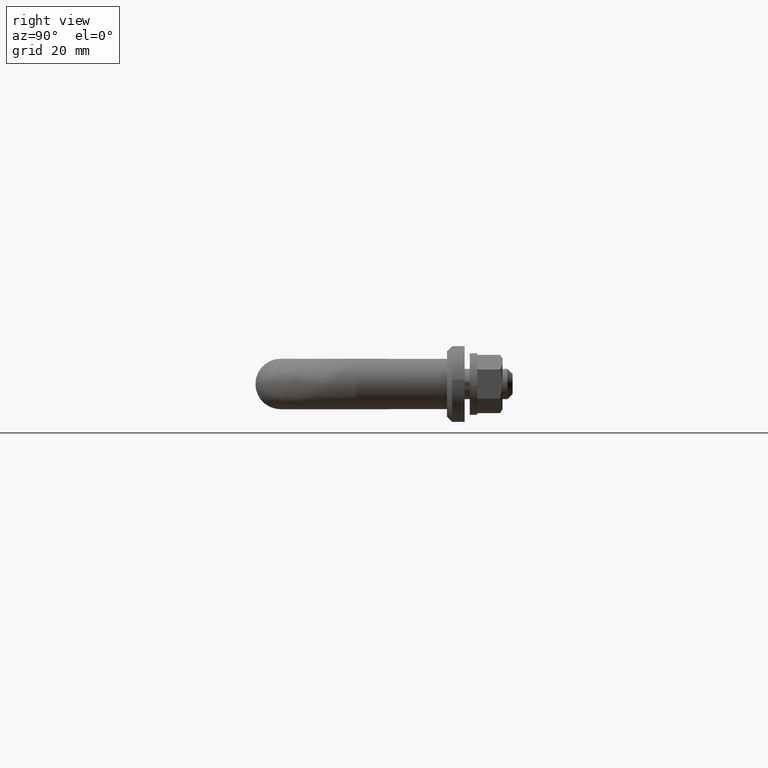
[diagram: clean part render]
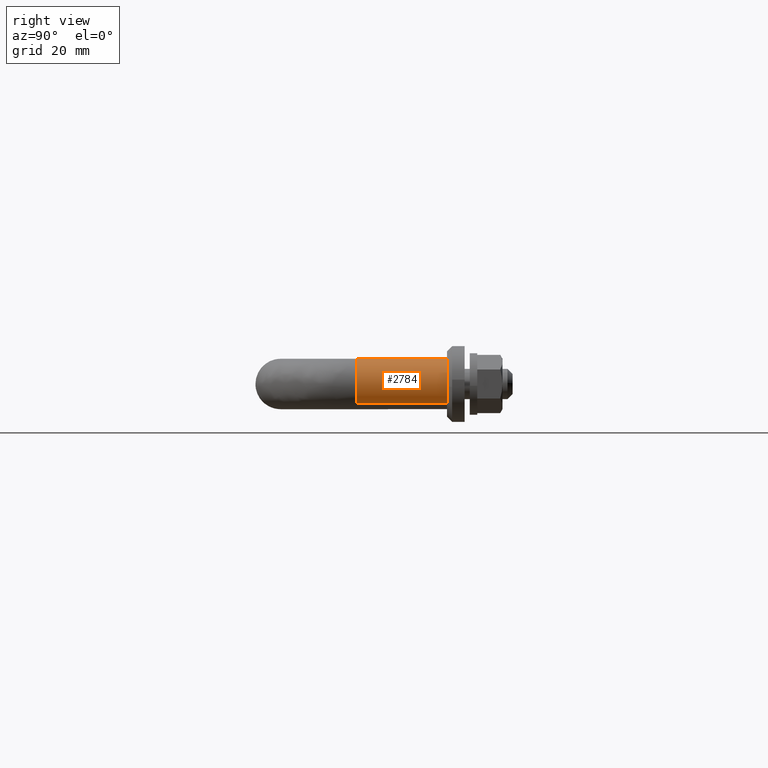
[diagram: same view with one face highlighted and labeled with its STEP entity id]
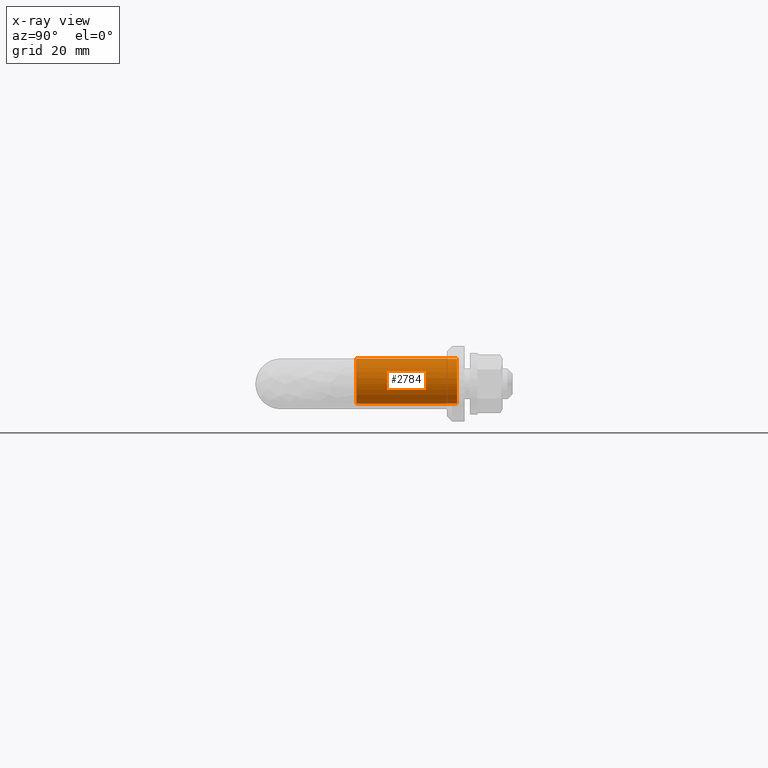
[diagram: x-ray of the same camera — body ghosted, the highlighted face saturated]
A machine part, right view. The second image highlights one B-rep face of the part: STEP entity #2784.
The next image is the same camera in x-ray: the body ghosted, the highlighted face saturated — about 0% of this face is hidden behind the body in this view.
In plain terms, the highlighted face is a freeform B-spline surface patch.
Its self-contained STEP definition (entity closure, byte-faithful):
#2593=CARTESIAN_POINT('',(123.112570831137400,-19.999999999999869,-3.913042655165403));
#2594=VERTEX_POINT('',#2593);
#2625=CARTESIAN_POINT('',(116.887429168862700,-19.999999999999869,3.913042655165409));
#2626=VERTEX_POINT('',#2625);
#2640=CARTESIAN_POINT('',(116.887431645887900,1.459943E-014,3.913044625472847));
#2641=VERTEX_POINT('',#2640);
#2642=CARTESIAN_POINT('',(116.887429168862700,-19.999999999999869,3.913042655165409));
#2643=CARTESIAN_POINT('',(116.887431645887900,1.459943E-014,3.913044625472847));
#2644=QUASI_UNIFORM_CURVE('',1,(#2642,#2643),.UNSPECIFIED.,.F.,.U.);
#2645=EDGE_CURVE('',#2626,#2641,#2644,.T.);
#2662=CARTESIAN_POINT('',(123.112568354112100,1.482148E-014,-3.913044625472846));
#2663=VERTEX_POINT('',#2662);
#2679=CARTESIAN_POINT('',(123.112570831137400,-19.999999999999869,-3.913042655165403));
#2680=CARTESIAN_POINT('',(123.112568354112100,1.482148E-014,-3.913044625472846));
#2681=QUASI_UNIFORM_CURVE('',1,(#2679,#2680),.UNSPECIFIED.,.F.,.U.);
#2682=EDGE_CURVE('',#2594,#2663,#2681,.T.);
#2687=CARTESIAN_POINT('',(116.887426816811900,-20.500000000635438,3.913040784262069));
#2688=CARTESIAN_POINT('',(120.800467601073990,-20.500000000635442,7.025613967450165));
#2689=CARTESIAN_POINT('',(123.913040784262090,-20.500000000635438,3.112573183188096));
#2690=CARTESIAN_POINT('',(127.025613967450160,-20.500000000635442,-0.800467601073974));
#2691=CARTESIAN_POINT('',(123.112573183188100,-20.500000000635438,-3.913040784262069));
#2692=CARTESIAN_POINT('',(116.887426816811900,0.512500000015897,3.913040784262069));
#2693=CARTESIAN_POINT('',(120.800467601073990,0.512500000015897,7.025613967450165));
#2694=CARTESIAN_POINT('',(123.913040784262090,0.512500000015898,3.112573183188096));
#2695=CARTESIAN_POINT('',(127.025613967450160,0.512500000015898,-0.800467601073974));
#2696=CARTESIAN_POINT('',(123.112573183188100,0.512500000015898,-3.913040784262069));
#2704=(BOUNDED_SURFACE()B_SPLINE_SURFACE(2,1,((#2687,#2692),(#2688,#2693),(#2689,#2694),(#2690,#2695),(#2691,#2696)),.UNSPECIFIED.,.F.,.F.,.U.)B_SPLINE_SURFACE_WITH_KNOTS((3,2,3),(2,2),(0.0,8.284271247461904,16.568542494923811),(0.0,21.012500000651340),.UNSPECIFIED.)GEOMETRIC_REPRESENTATION_ITEM()RATIONAL_B_SPLINE_SURFACE(((1.0,1.0),(0.707106781186548,0.707106781186548),(1.0,1.0),(0.707106781186548,0.707106781186548),(1.0,1.0)))REPRESENTATION_ITEM('')SURFACE());
#2705=CARTESIAN_POINT('',(125.0,-20.0,0.0));
#2706=VERTEX_POINT('',#2705);
#2707=CARTESIAN_POINT('',(123.112570831137380,-19.999999999999865,-3.913042655165403));
#2708=CARTESIAN_POINT('',(125.000000000000060,-20.0,-2.411715556397324));
#2709=CARTESIAN_POINT('',(125.0,-20.0,0.0));
#2717=(BOUNDED_CURVE()B_SPLINE_CURVE(2,(#2707,#2708,#2709),.UNSPECIFIED.,.F.,.U.)B_SPLINE_CURVE_WITH_KNOTS((3,3),(0.357863786403069,0.500000000000000),.UNSPECIFIED.)CURVE()GEOMETRIC_REPRESENTATION_ITEM()RATIONAL_B_SPLINE_CURVE((0.856305647871385,0.833477067558554,1.0))REPRESENTATION_ITEM(''));
#2718=EDGE_CURVE('',#2594,#2706,#2717,.T.);
#2719=ORIENTED_EDGE('',*,*,#2718,.F.);
#2720=ORIENTED_EDGE('',*,*,#2682,.T.);
#2721=CARTESIAN_POINT('',(125.0,1.387779E-014,0.0));
#2722=VERTEX_POINT('',#2721);
#2723=CARTESIAN_POINT('',(123.112568354112130,1.482148E-014,-3.913044625472847));
#2724=CARTESIAN_POINT('',(124.999999999999960,1.387779E-014,-2.411717507126597));
#2725=CARTESIAN_POINT('',(125.0,1.387779E-014,0.0));
#2733=(BOUNDED_CURVE()B_SPLINE_CURVE(2,(#2723,#2724,#2725),.UNSPECIFIED.,.F.,.U.)B_SPLINE_CURVE_WITH_KNOTS((3,3),(0.357863690580181,0.500000000000000),.UNSPECIFIED.)CURVE()GEOMETRIC_REPRESENTATION_ITEM()RATIONAL_B_SPLINE_CURVE((0.856305678651811,0.833476955295058,1.0))REPRESENTATION_ITEM(''));
#2734=EDGE_CURVE('',#2663,#2722,#2733,.T.);
#2735=ORIENTED_EDGE('',*,*,#2734,.T.);
#2736=CARTESIAN_POINT('',(125.0,1.387779E-014,0.0));
#2737=CARTESIAN_POINT('',(125.0,1.387779E-014,5.000000000000001));
#2738=CARTESIAN_POINT('',(120.0,1.387779E-014,5.0));
#2739=CARTESIAN_POINT('',(118.253925294383750,1.387779E-014,5.0));
#2740=CARTESIAN_POINT('',(116.887431645887930,1.459943E-014,3.913044625472848));
#2748=(BOUNDED_CURVE()B_SPLINE_CURVE(2,(#2736,#2737,#2738,#2739,#2740),.UNSPECIFIED.,.F.,.U.)B_SPLINE_CURVE_WITH_KNOTS((3,2,3),(0.500000000000000,0.750000000000000,0.857863690580181),.UNSPECIFIED.)CURVE()GEOMETRIC_REPRESENTATION_ITEM()RATIONAL_B_SPLINE_CURVE((1.0,0.707106781186548,1.0,0.873629825891491,0.856305678651812))REPRESENTATION_ITEM(''));
#2749=EDGE_CURVE('',#2722,#2641,#2748,.T.);
#2750=ORIENTED_EDGE('',*,*,#2749,.T.);
#2751=ORIENTED_EDGE('',*,*,#2645,.F.);
#2752=CARTESIAN_POINT('',(120.348666261161990,-20.000000000619941,4.987828368972547));
#2753=VERTEX_POINT('',#2752);
#2754=CARTESIAN_POINT('',(120.348666261161990,-20.000000000619938,4.987828368972547));
#2755=CARTESIAN_POINT('',(120.174545582670320,-20.000000000000004,5.000000000000001));
#2756=CARTESIAN_POINT('',(120.0,-20.0,5.0));
#2757=CARTESIAN_POINT('',(118.253923518848110,-20.0,5.0));
#2758=CARTESIAN_POINT('',(116.887429168862600,-19.999999999999869,3.913042655165410));
#2766=(BOUNDED_CURVE()B_SPLINE_CURVE(2,(#2754,#2755,#2756,#2757,#2758),.UNSPECIFIED.,.F.,.U.)B_SPLINE_CURVE_WITH_KNOTS((3,2,3),(0.737833686308616,0.750000000000000,0.857863786403068),.UNSPECIFIED.)CURVE()GEOMETRIC_REPRESENTATION_ITEM()RATIONAL_B_SPLINE_CURVE((0.972879875907961,0.985746276887346,1.0,0.873629713627995,0.856305647871386))REPRESENTATION_ITEM(''));
#2767=EDGE_CURVE('',#2753,#2626,#2766,.T.);
#2768=ORIENTED_EDGE('',*,*,#2767,.F.);
#2769=CARTESIAN_POINT('',(125.0,-20.0,0.0));
#2770=CARTESIAN_POINT('',(124.999999999999990,-19.999999999999996,4.662684230176913));
#2771=CARTESIAN_POINT('',(120.348666261161950,-20.000000000619941,4.987828368972547));
#2779=(BOUNDED_CURVE()B_SPLINE_CURVE(2,(#2769,#2770,#2771),.UNSPECIFIED.,.F.,.U.)B_SPLINE_CURVE_WITH_KNOTS((3,3),(0.500000000000000,0.737833686308617),.UNSPECIFIED.)CURVE()GEOMETRIC_REPRESENTATION_ITEM()RATIONAL_B_SPLINE_CURVE((1.0,0.721360504299201,0.972879875907963))REPRESENTATION_ITEM(''));
#2780=EDGE_CURVE('',#2706,#2753,#2779,.T.);
#2781=ORIENTED_EDGE('',*,*,#2780,.F.);
#2782=EDGE_LOOP('',(#2719,#2720,#2735,#2750,#2751,#2768,#2781));
#2783=FACE_OUTER_BOUND('',#2782,.T.);
#2784=ADVANCED_FACE('',(#2783),#2704,.T.);